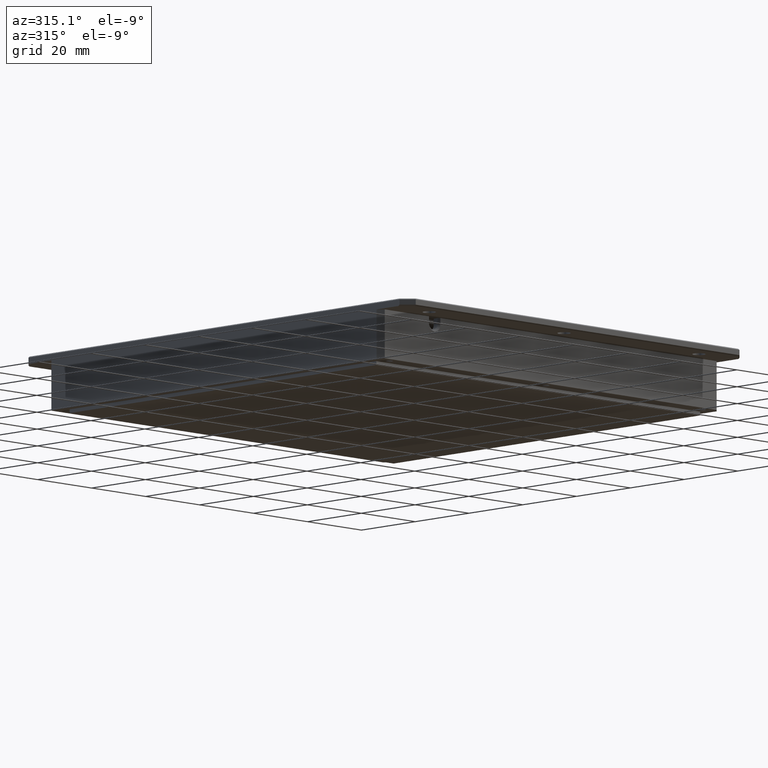
[diagram: clean part render]
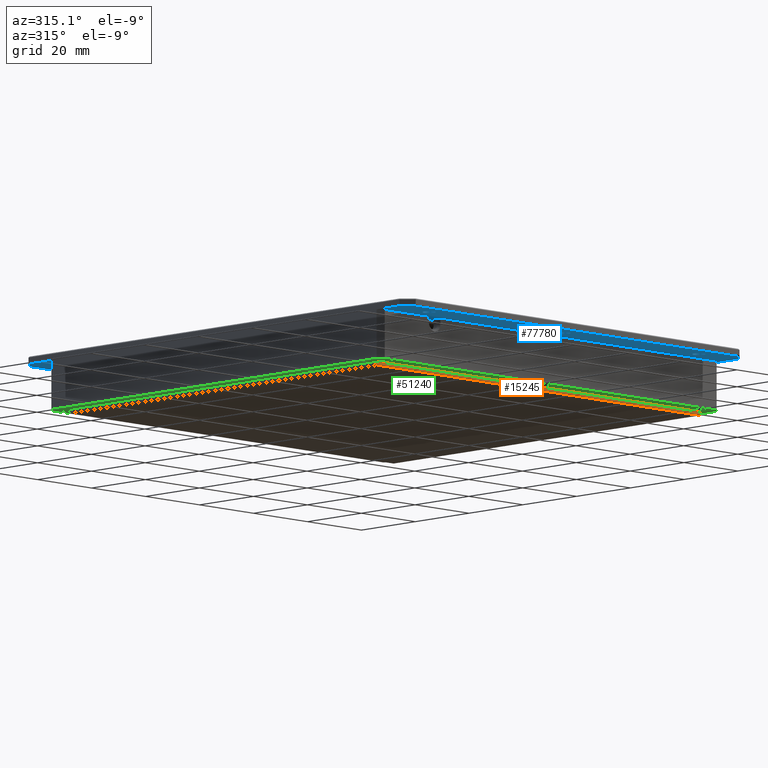
[diagram: same view with three faces highlighted in distinct colors, each labeled with its STEP entity id]
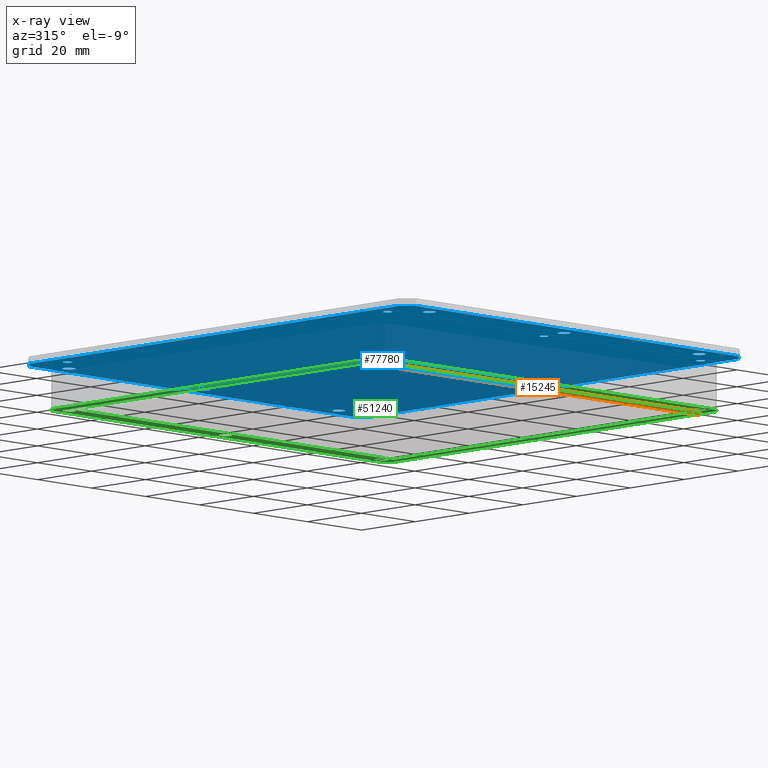
[diagram: x-ray of the same camera — body ghosted, the three highlighted faces saturated]
A machine part, auxiliary view with three faces highlighted in distinct colors.
The next image is the same camera in x-ray (body ghosted, the three faces saturated) — at least one of them is partly hidden behind the body in this view.
Their STEP definitions:

[orange] entity #15245 — the highlighted planar face has unit normal (0, 1, 0).
#1141 = ORIENTED_EDGE ( 'NONE', *, *, #70157, .F. ) ;
#2889 = VECTOR ( 'NONE', #27971, 1000.000000000000000 ) ;
#5995 = LINE ( 'NONE', #15081, #78928 ) ;
#6916 = CARTESIAN_POINT ( 'NONE',  ( 60.00000000000002100, -46.11034746086290400, -3.000000000016370500 ) ) ;
#9542 = EDGE_CURVE ( 'NONE', #23405, #45340, #44798, .T. ) ;
#9811 = CARTESIAN_POINT ( 'NONE',  ( -59.99999999999997200, -46.11034746086290400, -3.000000000016370500 ) ) ;
#10402 = VERTEX_POINT ( 'NONE', #66588 ) ;
#11748 = CARTESIAN_POINT ( 'NONE',  ( 60.00000000000002100, -46.11034746086290400, -3.000000000016370500 ) ) ;
#12347 = ORIENTED_EDGE ( 'NONE', *, *, #48751, .T. ) ;
#13976 = LINE ( 'NONE', #20909, #2889 ) ;
#14373 = ORIENTED_EDGE ( 'NONE', *, *, #83232, .F. ) ;
#14496 = ORIENTED_EDGE ( 'NONE', *, *, #9542, .T. ) ;
#15081 = CARTESIAN_POINT ( 'NONE',  ( 60.00000000000002100, -46.11034746086290400, -3.000000000016370500 ) ) ;
#15245 = ADVANCED_FACE ( 'NONE', ( #29198 ), #81844, .F. ) ;
#15818 = EDGE_LOOP ( 'NONE', ( #14496, #1141, #14373, #12347 ) ) ;
#18270 = VECTOR ( 'NONE', #73549, 1000.000000000000000 ) ;
#20870 = CARTESIAN_POINT ( 'NONE',  ( 60.00000000000002100, -46.11034746086289700, -2.000000000016370500 ) ) ;
#20909 = CARTESIAN_POINT ( 'NONE',  ( 60.00000000000002100, -46.11034746086290400, -3.000000000016370500 ) ) ;
#23405 = VERTEX_POINT ( 'NONE', #20870 ) ;
#25555 = LINE ( 'NONE', #9811, #58662 ) ;
#27971 = DIRECTION ( 'NONE',  ( -0.0000000000000000000, -0.0000000000000000000, 1.000000000000000000 ) ) ;
#29198 = FACE_OUTER_BOUND ( 'NONE', #15818, .T. ) ;
#30024 = CARTESIAN_POINT ( 'NONE',  ( 60.00000000000002100, -46.11034746086290400, -2.000000000016370500 ) ) ;
#40765 = DIRECTION ( 'NONE',  ( 0.0000000000000000000, 1.000000000000000000, 0.0000000000000000000 ) ) ;
#44798 = LINE ( 'NONE', #30024, #18270 ) ;
#45033 = DIRECTION ( 'NONE',  ( -0.0000000000000000000, -0.0000000000000000000, 1.000000000000000000 ) ) ;
#45115 = CARTESIAN_POINT ( 'NONE',  ( -59.99999999999997200, -46.11034746086290400, -2.000000000016370500 ) ) ;
#45340 = VERTEX_POINT ( 'NONE', #45115 ) ;
#47565 = VERTEX_POINT ( 'NONE', #6916 ) ;
#48751 = EDGE_CURVE ( 'NONE', #47565, #23405, #13976, .T. ) ;
#49058 = DIRECTION ( 'NONE',  ( -1.000000000000000000, 0.0000000000000000000, 0.0000000000000000000 ) ) ;
#58662 = VECTOR ( 'NONE', #45033, 1000.000000000000000 ) ;
#66588 = CARTESIAN_POINT ( 'NONE',  ( -59.99999999999997200, -46.11034746086290400, -3.000000000016370500 ) ) ;
#70157 = EDGE_CURVE ( 'NONE', #10402, #45340, #25555, .T. ) ;
#71131 = AXIS2_PLACEMENT_3D ( 'NONE', #11748, #40765, #90122 ) ;
#73549 = DIRECTION ( 'NONE',  ( -1.000000000000000000, 0.0000000000000000000, 0.0000000000000000000 ) ) ;
#78928 = VECTOR ( 'NONE', #49058, 1000.000000000000000 ) ;
#81844 = PLANE ( 'NONE',  #71131 ) ;
#83232 = EDGE_CURVE ( 'NONE', #47565, #10402, #5995, .T. ) ;
#90122 = DIRECTION ( 'NONE',  ( 0.0000000000000000000, -0.0000000000000000000, 1.000000000000000000 ) ) ;

[blue] entity #77780 — the highlighted planar face has unit normal (0, 0, -1).
#2 = VERTEX_POINT ( 'NONE', #35708 ) ;
#271 = AXIS2_PLACEMENT_3D ( 'NONE', #51923, #59913, #66147 ) ;
#340 = AXIS2_PLACEMENT_3D ( 'NONE', #18744, #25845, #32916 ) ;
#439 = CARTESIAN_POINT ( 'NONE',  ( -58.35509736540660700, 70.38965253913731600, 10.99999999998362900 ) ) ;
#542 = CIRCLE ( 'NONE', #60535, 1.199999999999992600 ) ;
#1120 = CIRCLE ( 'NONE', #57794, 1.750000000000001600 ) ;
#1303 = VECTOR ( 'NONE', #32647, 1000.000000000000000 ) ;
#1441 = AXIS2_PLACEMENT_3D ( 'NONE', #52213, #37735, #24088 ) ;
#1725 = VERTEX_POINT ( 'NONE', #90123 ) ;
#2164 = CIRCLE ( 'NONE', #33594, 1.749999999999994700 ) ;
#2220 = CARTESIAN_POINT ( 'NONE',  ( -50.35509736540662100, -56.11034746086280500, 10.99999999998362900 ) ) ;
#3586 = CARTESIAN_POINT ( 'NONE',  ( 58.84490263459335300, 70.38965253913708900, 10.99999999998362900 ) ) ;
#3815 = CARTESIAN_POINT ( 'NONE',  ( 62.64490263459336500, -57.68608339215082000, 10.99999999998362700 ) ) ;
#3973 = AXIS2_PLACEMENT_3D ( 'NONE', #24862, #17489, #88481 ) ;
#4500 = CARTESIAN_POINT ( 'NONE',  ( -0.3550973654066202900, 70.38965253913720200, 10.99999999998362900 ) ) ;
#4666 = CARTESIAN_POINT ( 'NONE',  ( 0.8449026345933724500, 70.38965253913720200, 10.99999999998362900 ) ) ;
#4929 = EDGE_LOOP ( 'NONE', ( #39326, #24091 ) ) ;
#5192 = CARTESIAN_POINT ( 'NONE',  ( -0.3550973654066480500, -48.61034746086278300, 10.99999999998362900 ) ) ;
#5398 = VERTEX_POINT ( 'NONE', #3815 ) ;
#5488 = VERTEX_POINT ( 'NONE', #41167 ) ;
#5751 = CIRCLE ( 'NONE', #67407, 1.750000000000001600 ) ;
#5807 = CIRCLE ( 'NONE', #19047, 1.199999999999992600 ) ;
#5818 = AXIS2_PLACEMENT_3D ( 'NONE', #70883, #36650, #78924 ) ;
#6398 = DIRECTION ( 'NONE',  ( 1.000000000000000000, 0.0000000000000000000, 0.0000000000000000000 ) ) ;
#6442 = ORIENTED_EDGE ( 'NONE', *, *, #86035, .T. ) ;
#6678 = EDGE_CURVE ( 'NONE', #89245, #10691, #36011, .T. ) ;
#6715 = EDGE_CURVE ( 'NONE', #60597, #41751, #20415, .T. ) ;
#7381 = VERTEX_POINT ( 'NONE', #71819 ) ;
#8109 = ORIENTED_EDGE ( 'NONE', *, *, #70982, .T. ) ;
#8296 = VECTOR ( 'NONE', #56103, 1000.000000000000000 ) ;
#8722 = ORIENTED_EDGE ( 'NONE', *, *, #6715, .T. ) ;
#8902 = VERTEX_POINT ( 'NONE', #28936 ) ;
#9186 = CARTESIAN_POINT ( 'NONE',  ( -2.105097365406622100, -56.11034746086279800, 10.99999999998362900 ) ) ;
#9501 = EDGE_LOOP ( 'NONE', ( #15522, #54613 ) ) ;
#9629 = CARTESIAN_POINT ( 'NONE',  ( -0.3550973654066480500, -48.61034746086278300, 10.99999999998362900 ) ) ;
#9937 = DIRECTION ( 'NONE',  ( 1.000000000000000000, 0.0000000000000000000, 0.0000000000000000000 ) ) ;
#10273 = DIRECTION ( 'NONE',  ( -0.7071067811865474600, -0.7071067811865474600, 0.0000000000000000000 ) ) ;
#10485 = EDGE_LOOP ( 'NONE', ( #36042, #56058 ) ) ;
#10691 = VERTEX_POINT ( 'NONE', #62805 ) ;
#10714 = CARTESIAN_POINT ( 'NONE',  ( -59.55509736540660300, -48.61034746086278300, 10.99999999998362900 ) ) ;
#11708 = ORIENTED_EDGE ( 'NONE', *, *, #72162, .T. ) ;
#11731 = VECTOR ( 'NONE', #10273, 1000.000000000000100 ) ;
#11946 = FACE_BOUND ( 'NONE', #10485, .T. ) ;
#12074 = EDGE_CURVE ( 'NONE', #64455, #42051, #29140, .T. ) ;
#13465 = AXIS2_PLACEMENT_3D ( 'NONE', #439, #55712, #34375 ) ;
#13487 = VERTEX_POINT ( 'NONE', #4666 ) ;
#13589 = CARTESIAN_POINT ( 'NONE',  ( 51.39490263459338600, -56.11034746086279100, 10.99999999998362900 ) ) ;
#14575 = CARTESIAN_POINT ( 'NONE',  ( 62.64490263459336500, 82.88965253913721700, 10.99999999998362900 ) ) ;
#14707 = CARTESIAN_POINT ( 'NONE',  ( 51.39490263459335800, 77.88965253913718800, 10.99999999998362900 ) ) ;
#14734 = EDGE_LOOP ( 'NONE', ( #34965, #86643 ) ) ;
#14946 = EDGE_CURVE ( 'NONE', #67254, #1725, #34859, .T. ) ;
#15045 = LINE ( 'NONE', #45816, #11731 ) ;
#15522 = ORIENTED_EDGE ( 'NONE', *, *, #12074, .T. ) ;
#15758 = EDGE_CURVE ( 'NONE', #7381, #40315, #88541, .T. ) ;
#16067 = EDGE_LOOP ( 'NONE', ( #44583, #27298 ) ) ;
#16168 = CARTESIAN_POINT ( 'NONE',  ( -57.15509736540661800, -48.61034746086278300, 10.99999999998362900 ) ) ;
#16271 = LINE ( 'NONE', #53203, #72604 ) ;
#16297 = EDGE_CURVE ( 'NONE', #13487, #2, #56520, .T. ) ;
#16516 = CARTESIAN_POINT ( 'NONE',  ( -57.15509736540661800, 70.38965253913731600, 10.99999999998362900 ) ) ;
#17043 = EDGE_CURVE ( 'NONE', #21971, #21071, #67437, .T. ) ;
#17098 = EDGE_CURVE ( 'NONE', #44300, #57053, #1120, .T. ) ;
#17186 = VECTOR ( 'NONE', #84320, 1000.000000000000000 ) ;
#17370 = ORIENTED_EDGE ( 'NONE', *, *, #19214, .T. ) ;
#17489 = DIRECTION ( 'NONE',  ( -0.0000000000000000000, -0.0000000000000000000, 1.000000000000000000 ) ) ;
#17819 = LINE ( 'NONE', #19098, #1303 ) ;
#17999 = CARTESIAN_POINT ( 'NONE',  ( 1.394902634593381300, -56.11034746086279800, 10.99999999998362900 ) ) ;
#18730 = AXIS2_PLACEMENT_3D ( 'NONE', #59819, #66657, #25552 ) ;
#18744 = CARTESIAN_POINT ( 'NONE',  ( -50.35509736540662100, 77.88965253913718800, 10.99999999998362900 ) ) ;
#19047 = AXIS2_PLACEMENT_3D ( 'NONE', #25407, #46423, #25099 ) ;
#19098 = CARTESIAN_POINT ( 'NONE',  ( -63.35509736540663500, 79.46538847042531000, 10.99999999998362900 ) ) ;
#19164 = DIRECTION ( 'NONE',  ( -0.0000000000000000000, -0.0000000000000000000, 1.000000000000000000 ) ) ;
#19214 = EDGE_CURVE ( 'NONE', #54623, #55666, #542, .T. ) ;
#19304 = DIRECTION ( 'NONE',  ( -0.0000000000000000000, -0.0000000000000000000, 1.000000000000000000 ) ) ;
#19352 = EDGE_CURVE ( 'NONE', #2, #13487, #65743, .T. ) ;
#19365 = CARTESIAN_POINT ( 'NONE',  ( -0.3550973654066202900, -56.11034746086279800, 10.99999999998362900 ) ) ;
#20086 = CARTESIAN_POINT ( 'NONE',  ( 57.64490263459336500, 70.38965253913708900, 10.99999999998362900 ) ) ;
#20415 = LINE ( 'NONE', #90352, #8296 ) ;
#20448 = CIRCLE ( 'NONE', #57041, 1.199999999999992600 ) ;
#20492 = VECTOR ( 'NONE', #69828, 1000.000000000000100 ) ;
#21071 = VERTEX_POINT ( 'NONE', #45291 ) ;
#21701 = EDGE_CURVE ( 'NONE', #21071, #21971, #75453, .T. ) ;
#21971 = VERTEX_POINT ( 'NONE', #16516 ) ;
#22913 = CARTESIAN_POINT ( 'NONE',  ( 57.64490263459336500, 70.38965253913708900, 10.99999999998362900 ) ) ;
#23449 = VERTEX_POINT ( 'NONE', #43399 ) ;
#23655 = ORIENTED_EDGE ( 'NONE', *, *, #82213, .T. ) ;
#23754 = LINE ( 'NONE', #39700, #50278 ) ;
#23803 = DIRECTION ( 'NONE',  ( -0.0000000000000000000, -0.0000000000000000000, 1.000000000000000000 ) ) ;
#24088 = DIRECTION ( 'NONE',  ( 1.000000000000000000, 0.0000000000000000000, 0.0000000000000000000 ) ) ;
#24091 = ORIENTED_EDGE ( 'NONE', *, *, #21701, .T. ) ;
#24862 = CARTESIAN_POINT ( 'NONE',  ( -58.35509736540660700, 70.38965253913731600, 10.99999999998362900 ) ) ;
#25003 = ORIENTED_EDGE ( 'NONE', *, *, #16297, .T. ) ;
#25099 = DIRECTION ( 'NONE',  ( 1.000000000000000000, 0.0000000000000000000, 0.0000000000000000000 ) ) ;
#25142 = CIRCLE ( 'NONE', #271, 1.750000000000001600 ) ;
#25407 = CARTESIAN_POINT ( 'NONE',  ( -58.35509736540660700, -48.61034746086278300, 10.99999999998362900 ) ) ;
#25552 = DIRECTION ( 'NONE',  ( 1.000000000000000000, 0.0000000000000000000, 0.0000000000000000000 ) ) ;
#25795 = DIRECTION ( 'NONE',  ( 0.0000000000000000000, 1.000000000000000000, 0.0000000000000000000 ) ) ;
#25845 = DIRECTION ( 'NONE',  ( -0.0000000000000000000, -0.0000000000000000000, 1.000000000000000000 ) ) ;
#26309 = DIRECTION ( 'NONE',  ( -0.0000000000000000000, -0.0000000000000000000, 1.000000000000000000 ) ) ;
#26429 = EDGE_LOOP ( 'NONE', ( #25003, #51580 ) ) ;
#26608 = DIRECTION ( 'NONE',  ( 1.000000000000000000, 0.0000000000000000000, 0.0000000000000000000 ) ) ;
#26658 = CARTESIAN_POINT ( 'NONE',  ( 49.64490263459335800, 77.88965253913718800, 10.99999999998362900 ) ) ;
#27298 = ORIENTED_EDGE ( 'NONE', *, *, #40571, .T. ) ;
#27302 = CARTESIAN_POINT ( 'NONE',  ( 49.64490263459335800, 77.88965253913718800, 10.99999999998362900 ) ) ;
#27397 = CARTESIAN_POINT ( 'NONE',  ( 57.64490263459336500, -48.61034746086282600, 10.99999999998362900 ) ) ;
#27583 = DIRECTION ( 'NONE',  ( 1.000000000000000000, 0.0000000000000000000, 0.0000000000000000000 ) ) ;
#27674 = DIRECTION ( 'NONE',  ( 1.000000000000000000, 0.0000000000000000000, 0.0000000000000000000 ) ) ;
#27888 = EDGE_CURVE ( 'NONE', #75079, #55200, #17819, .T. ) ;
#28268 = CARTESIAN_POINT ( 'NONE',  ( 0.8449026345933446900, -48.61034746086278300, 10.99999999998362900 ) ) ;
#28507 = FACE_BOUND ( 'NONE', #14734, .T. ) ;
#28936 = CARTESIAN_POINT ( 'NONE',  ( -52.10509736540662100, 77.88965253913718800, 10.99999999998362900 ) ) ;
#29140 = CIRCLE ( 'NONE', #5818, 1.750000000000001600 ) ;
#29327 = ORIENTED_EDGE ( 'NONE', *, *, #79867, .T. ) ;
#29886 = EDGE_CURVE ( 'NONE', #87800, #5488, #76757, .T. ) ;
#30426 = CARTESIAN_POINT ( 'NONE',  ( 47.89490263459335000, 77.88965253913718800, 10.99999999998362900 ) ) ;
#31063 = DIRECTION ( 'NONE',  ( 1.000000000000000000, 0.0000000000000000000, 0.0000000000000000000 ) ) ;
#31160 = VERTEX_POINT ( 'NONE', #54437 ) ;
#32394 = EDGE_LOOP ( 'NONE', ( #63367, #70420 ) ) ;
#32647 = DIRECTION ( 'NONE',  ( 0.7071067811865474600, 0.7071067811865475700, 0.0000000000000000000 ) ) ;
#32916 = DIRECTION ( 'NONE',  ( 1.000000000000000000, 0.0000000000000000000, 0.0000000000000000000 ) ) ;
#32961 = CARTESIAN_POINT ( 'NONE',  ( -48.60509736540662800, 77.88965253913718800, 10.99999999998362900 ) ) ;
#33201 = DIRECTION ( 'NONE',  ( 1.000000000000000000, 0.0000000000000000000, 0.0000000000000000000 ) ) ;
#33594 = AXIS2_PLACEMENT_3D ( 'NONE', #74184, #26309, #26608 ) ;
#33751 = LINE ( 'NONE', #70122, #20492 ) ;
#33848 = EDGE_CURVE ( 'NONE', #74961, #75079, #23754, .T. ) ;
#34228 = DIRECTION ( 'NONE',  ( 1.000000000000000000, -0.0000000000000000000, 0.0000000000000000000 ) ) ;
#34286 = DIRECTION ( 'NONE',  ( -1.000000000000000000, 0.0000000000000000000, -0.0000000000000000000 ) ) ;
#34298 = EDGE_LOOP ( 'NONE', ( #17370, #76006 ) ) ;
#34375 = DIRECTION ( 'NONE',  ( 1.000000000000000000, 0.0000000000000000000, 0.0000000000000000000 ) ) ;
#34699 = ORIENTED_EDGE ( 'NONE', *, *, #60260, .T. ) ;
#34708 = ORIENTED_EDGE ( 'NONE', *, *, #65560, .T. ) ;
#34859 = CIRCLE ( 'NONE', #69387, 1.199999999999992600 ) ;
#34965 = ORIENTED_EDGE ( 'NONE', *, *, #62825, .T. ) ;
#35533 = CARTESIAN_POINT ( 'NONE',  ( -63.35509736540663500, 79.46538847042533900, 10.99999999998363600 ) ) ;
#35708 = CARTESIAN_POINT ( 'NONE',  ( -1.555097365406612900, 70.38965253913720200, 10.99999999998362900 ) ) ;
#36011 = CIRCLE ( 'NONE', #54795, 1.750000000000001600 ) ;
#36042 = ORIENTED_EDGE ( 'NONE', *, *, #14946, .T. ) ;
#36633 = EDGE_CURVE ( 'NONE', #66794, #23449, #64714, .T. ) ;
#36650 = DIRECTION ( 'NONE',  ( -0.0000000000000000000, -0.0000000000000000000, 1.000000000000000000 ) ) ;
#36851 = DIRECTION ( 'NONE',  ( 1.000000000000000000, 0.0000000000000000000, 0.0000000000000000000 ) ) ;
#37326 = EDGE_CURVE ( 'NONE', #8902, #90298, #51171, .T. ) ;
#37424 = FACE_BOUND ( 'NONE', #32394, .T. ) ;
#37454 = DIRECTION ( 'NONE',  ( -0.0000000000000000000, -0.0000000000000000000, 1.000000000000000000 ) ) ;
#37474 = EDGE_LOOP ( 'NONE', ( #8109, #23655, #34699, #29327, #8722, #83186, #42608, #49895 ) ) ;
#37735 = DIRECTION ( 'NONE',  ( -0.0000000000000000000, -0.0000000000000000000, 1.000000000000000000 ) ) ;
#39017 = LINE ( 'NONE', #71439, #76583 ) ;
#39326 = ORIENTED_EDGE ( 'NONE', *, *, #17043, .T. ) ;
#39700 = CARTESIAN_POINT ( 'NONE',  ( -63.35509736540663500, 82.88965253913721700, 10.99999999998362900 ) ) ;
#40315 = VERTEX_POINT ( 'NONE', #28268 ) ;
#40493 = EDGE_LOOP ( 'NONE', ( #6442, #48014 ) ) ;
#40571 = EDGE_CURVE ( 'NONE', #31160, #46335, #73186, .T. ) ;
#40710 = DIRECTION ( 'NONE',  ( -0.0000000000000000000, -0.0000000000000000000, 1.000000000000000000 ) ) ;
#40794 = PLANE ( 'NONE',  #84349 ) ;
#41167 = CARTESIAN_POINT ( 'NONE',  ( -48.60509736540662800, -56.11034746086280500, 10.99999999998362900 ) ) ;
#41625 = AXIS2_PLACEMENT_3D ( 'NONE', #4500, #48062, #33201 ) ;
#41751 = VERTEX_POINT ( 'NONE', #61725 ) ;
#42051 = VERTEX_POINT ( 'NONE', #9186 ) ;
#42423 = DIRECTION ( 'NONE',  ( -0.0000000000000000000, -0.0000000000000000000, 1.000000000000000000 ) ) ;
#42608 = ORIENTED_EDGE ( 'NONE', *, *, #33848, .T. ) ;
#42880 = FACE_BOUND ( 'NONE', #40493, .T. ) ;
#43309 = CARTESIAN_POINT ( 'NONE',  ( -0.3550973654066202900, 77.88965253913718800, 10.99999999998362900 ) ) ;
#43399 = CARTESIAN_POINT ( 'NONE',  ( 1.394902634593381300, 77.88965253913718800, 10.99999999998362900 ) ) ;
#44300 = VERTEX_POINT ( 'NONE', #30426 ) ;
#44583 = ORIENTED_EDGE ( 'NONE', *, *, #87898, .T. ) ;
#45291 = CARTESIAN_POINT ( 'NONE',  ( -59.55509736540660300, 70.38965253913731600, 10.99999999998362900 ) ) ;
#45816 = CARTESIAN_POINT ( 'NONE',  ( 62.64490263459336500, -57.68608339215083400, 10.99999999998362900 ) ) ;
#46031 = EDGE_LOOP ( 'NONE', ( #34708, #69743 ) ) ;
#46335 = VERTEX_POINT ( 'NONE', #63299 ) ;
#46423 = DIRECTION ( 'NONE',  ( -0.0000000000000000000, -0.0000000000000000000, 1.000000000000000000 ) ) ;
#47075 = LINE ( 'NONE', #14575, #17186 ) ;
#47775 = CIRCLE ( 'NONE', #65463, 1.750000000000001600 ) ;
#48014 = ORIENTED_EDGE ( 'NONE', *, *, #36633, .T. ) ;
#48062 = DIRECTION ( 'NONE',  ( -0.0000000000000000000, -0.0000000000000000000, 1.000000000000000000 ) ) ;
#48514 = EDGE_LOOP ( 'NONE', ( #54065, #67259 ) ) ;
#49895 = ORIENTED_EDGE ( 'NONE', *, *, #27888, .T. ) ;
#50278 = VECTOR ( 'NONE', #25795, 1000.000000000000000 ) ;
#50718 = DIRECTION ( 'NONE',  ( 1.000000000000000000, 0.0000000000000000000, 0.0000000000000000000 ) ) ;
#51167 = CIRCLE ( 'NONE', #1441, 1.750000000000001600 ) ;
#51171 = CIRCLE ( 'NONE', #57616, 1.749999999999994700 ) ;
#51454 = EDGE_CURVE ( 'NONE', #55666, #54623, #5807, .T. ) ;
#51580 = ORIENTED_EDGE ( 'NONE', *, *, #19352, .T. ) ;
#51923 = CARTESIAN_POINT ( 'NONE',  ( -0.3550973654066202900, 77.88965253913718800, 10.99999999998362900 ) ) ;
#52213 = CARTESIAN_POINT ( 'NONE',  ( 49.64490263459338600, -56.11034746086279100, 10.99999999998362900 ) ) ;
#52711 = DIRECTION ( 'NONE',  ( -0.0000000000000000000, -0.0000000000000000000, 1.000000000000000000 ) ) ;
#52714 = CARTESIAN_POINT ( 'NONE',  ( -50.35509736540662100, 77.88965253913718800, 10.99999999998362900 ) ) ;
#52799 = FACE_BOUND ( 'NONE', #9501, .T. ) ;
#53107 = CARTESIAN_POINT ( 'NONE',  ( -60.23083329669471900, 82.58965253913721900, 10.99999999998362400 ) ) ;
#53203 = CARTESIAN_POINT ( 'NONE',  ( 59.52063856588148400, 82.58965253913721900, 10.99999999998362900 ) ) ;
#53329 = EDGE_CURVE ( 'NONE', #41751, #74961, #33751, .T. ) ;
#53945 = FACE_OUTER_BOUND ( 'NONE', #37474, .T. ) ;
#54065 = ORIENTED_EDGE ( 'NONE', *, *, #61989, .T. ) ;
#54437 = CARTESIAN_POINT ( 'NONE',  ( 56.44490263459336900, -48.61034746086282600, 10.99999999998362900 ) ) ;
#54613 = ORIENTED_EDGE ( 'NONE', *, *, #58491, .T. ) ;
#54623 = VERTEX_POINT ( 'NONE', #16168 ) ;
#54795 = AXIS2_PLACEMENT_3D ( 'NONE', #83581, #76214, #27674 ) ;
#55200 = VERTEX_POINT ( 'NONE', #53107 ) ;
#55666 = VERTEX_POINT ( 'NONE', #10714 ) ;
#55712 = DIRECTION ( 'NONE',  ( -0.0000000000000000000, -0.0000000000000000000, 1.000000000000000000 ) ) ;
#56058 = ORIENTED_EDGE ( 'NONE', *, *, #57939, .T. ) ;
#56103 = DIRECTION ( 'NONE',  ( -1.000000000000000000, 0.0000000000000000000, -0.0000000000000000000 ) ) ;
#56520 = CIRCLE ( 'NONE', #18730, 1.199999999999992600 ) ;
#57041 = AXIS2_PLACEMENT_3D ( 'NONE', #20086, #19164, #76592 ) ;
#57053 = VERTEX_POINT ( 'NONE', #14707 ) ;
#57616 = AXIS2_PLACEMENT_3D ( 'NONE', #52714, #74007, #31063 ) ;
#57794 = AXIS2_PLACEMENT_3D ( 'NONE', #27302, #42423, #27583 ) ;
#57939 = EDGE_CURVE ( 'NONE', #1725, #67254, #20448, .T. ) ;
#58491 = EDGE_CURVE ( 'NONE', #42051, #64455, #47775, .T. ) ;
#59819 = CARTESIAN_POINT ( 'NONE',  ( -0.3550973654066202900, 70.38965253913720200, 10.99999999998362900 ) ) ;
#59913 = DIRECTION ( 'NONE',  ( -0.0000000000000000000, -0.0000000000000000000, 1.000000000000000000 ) ) ;
#60235 = CIRCLE ( 'NONE', #67861, 1.199999999999992600 ) ;
#60260 = EDGE_CURVE ( 'NONE', #83850, #5398, #47075, .T. ) ;
#60535 = AXIS2_PLACEMENT_3D ( 'NONE', #87886, #52711, #67220 ) ;
#60597 = VERTEX_POINT ( 'NONE', #79968 ) ;
#61448 = AXIS2_PLACEMENT_3D ( 'NONE', #5192, #40710, #68499 ) ;
#61725 = CARTESIAN_POINT ( 'NONE',  ( -60.23083329669470500, -60.81034746086280100, 10.99999999998362900 ) ) ;
#61989 = EDGE_CURVE ( 'NONE', #5488, #87800, #2164, .T. ) ;
#62643 = CARTESIAN_POINT ( 'NONE',  ( -2.105097365406622100, 77.88965253913718800, 10.99999999998362900 ) ) ;
#62794 = AXIS2_PLACEMENT_3D ( 'NONE', #83512, #19304, #89657 ) ;
#62805 = CARTESIAN_POINT ( 'NONE',  ( 47.89490263459337900, -56.11034746086279100, 10.99999999998362900 ) ) ;
#62825 = EDGE_CURVE ( 'NONE', #57053, #44300, #5751, .T. ) ;
#63299 = CARTESIAN_POINT ( 'NONE',  ( 58.84490263459335300, -48.61034746086282600, 10.99999999998362900 ) ) ;
#63367 = ORIENTED_EDGE ( 'NONE', *, *, #6678, .T. ) ;
#63888 = FACE_BOUND ( 'NONE', #16067, .T. ) ;
#64455 = VERTEX_POINT ( 'NONE', #17999 ) ;
#64714 = CIRCLE ( 'NONE', #88310, 1.750000000000001600 ) ;
#65463 = AXIS2_PLACEMENT_3D ( 'NONE', #19365, #68766, #69652 ) ;
#65560 = EDGE_CURVE ( 'NONE', #90298, #8902, #90941, .T. ) ;
#65743 = CIRCLE ( 'NONE', #41625, 1.199999999999992600 ) ;
#65955 = AXIS2_PLACEMENT_3D ( 'NONE', #2220, #37454, #87087 ) ;
#66111 = FACE_BOUND ( 'NONE', #34298, .T. ) ;
#66147 = DIRECTION ( 'NONE',  ( 1.000000000000000000, 0.0000000000000000000, 0.0000000000000000000 ) ) ;
#66256 = CIRCLE ( 'NONE', #61448, 1.199999999999992600 ) ;
#66657 = DIRECTION ( 'NONE',  ( -0.0000000000000000000, -0.0000000000000000000, 1.000000000000000000 ) ) ;
#66794 = VERTEX_POINT ( 'NONE', #62643 ) ;
#67220 = DIRECTION ( 'NONE',  ( 1.000000000000000000, 0.0000000000000000000, 0.0000000000000000000 ) ) ;
#67254 = VERTEX_POINT ( 'NONE', #3586 ) ;
#67259 = ORIENTED_EDGE ( 'NONE', *, *, #29886, .T. ) ;
#67407 = AXIS2_PLACEMENT_3D ( 'NONE', #26658, #76382, #82842 ) ;
#67437 = CIRCLE ( 'NONE', #13465, 1.199999999999992600 ) ;
#67861 = AXIS2_PLACEMENT_3D ( 'NONE', #27397, #77126, #6398 ) ;
#68499 = DIRECTION ( 'NONE',  ( 1.000000000000000000, 0.0000000000000000000, 0.0000000000000000000 ) ) ;
#68766 = DIRECTION ( 'NONE',  ( -0.0000000000000000000, -0.0000000000000000000, 1.000000000000000000 ) ) ;
#69387 = AXIS2_PLACEMENT_3D ( 'NONE', #22913, #72025, #36851 ) ;
#69450 = EDGE_CURVE ( 'NONE', #10691, #89245, #51167, .T. ) ;
#69484 = VERTEX_POINT ( 'NONE', #72890 ) ;
#69652 = DIRECTION ( 'NONE',  ( 1.000000000000000000, 0.0000000000000000000, 0.0000000000000000000 ) ) ;
#69743 = ORIENTED_EDGE ( 'NONE', *, *, #37326, .T. ) ;
#69828 = DIRECTION ( 'NONE',  ( -0.7071067811865499000, 0.7071067811865452400, 0.0000000000000000000 ) ) ;
#70081 = CARTESIAN_POINT ( 'NONE',  ( -63.35509736540663500, 82.88965253913721700, 10.99999999998362900 ) ) ;
#70122 = CARTESIAN_POINT ( 'NONE',  ( -60.23083329669469800, -60.81034746086280100, 10.99999999998362900 ) ) ;
#70420 = ORIENTED_EDGE ( 'NONE', *, *, #69450, .T. ) ;
#70497 = FACE_BOUND ( 'NONE', #4929, .T. ) ;
#70883 = CARTESIAN_POINT ( 'NONE',  ( -0.3550973654066202900, -56.11034746086279800, 10.99999999998362900 ) ) ;
#70982 = EDGE_CURVE ( 'NONE', #55200, #69484, #39017, .T. ) ;
#71439 = CARTESIAN_POINT ( 'NONE',  ( -63.35509736540663500, 82.58965253913721900, 10.99999999998362900 ) ) ;
#71819 = CARTESIAN_POINT ( 'NONE',  ( -1.555097365406640900, -48.61034746086278300, 10.99999999998362900 ) ) ;
#71999 = DIRECTION ( 'NONE',  ( -0.0000000000000000000, -0.0000000000000000000, 1.000000000000000000 ) ) ;
#72025 = DIRECTION ( 'NONE',  ( -0.0000000000000000000, -0.0000000000000000000, 1.000000000000000000 ) ) ;
#72162 = EDGE_CURVE ( 'NONE', #40315, #7381, #66256, .T. ) ;
#72604 = VECTOR ( 'NONE', #88385, 1000.000000000000100 ) ;
#72890 = CARTESIAN_POINT ( 'NONE',  ( 59.52063856588151200, 82.58965253913724800, 10.99999999998362000 ) ) ;
#73186 = CIRCLE ( 'NONE', #62794, 1.199999999999992600 ) ;
#74007 = DIRECTION ( 'NONE',  ( -0.0000000000000000000, -0.0000000000000000000, 1.000000000000000000 ) ) ;
#74184 = CARTESIAN_POINT ( 'NONE',  ( -50.35509736540662100, -56.11034746086280500, 10.99999999998362900 ) ) ;
#74961 = VERTEX_POINT ( 'NONE', #84005 ) ;
#74966 = FACE_BOUND ( 'NONE', #26429, .T. ) ;
#75079 = VERTEX_POINT ( 'NONE', #35533 ) ;
#75453 = CIRCLE ( 'NONE', #3973, 1.199999999999992600 ) ;
#76006 = ORIENTED_EDGE ( 'NONE', *, *, #51454, .T. ) ;
#76214 = DIRECTION ( 'NONE',  ( -0.0000000000000000000, -0.0000000000000000000, 1.000000000000000000 ) ) ;
#76382 = DIRECTION ( 'NONE',  ( -0.0000000000000000000, -0.0000000000000000000, 1.000000000000000000 ) ) ;
#76583 = VECTOR ( 'NONE', #34228, 1000.000000000000000 ) ;
#76592 = DIRECTION ( 'NONE',  ( 1.000000000000000000, 0.0000000000000000000, 0.0000000000000000000 ) ) ;
#76621 = DIRECTION ( 'NONE',  ( 0.0000000000000000000, 0.0000000000000000000, -1.000000000000000000 ) ) ;
#76757 = CIRCLE ( 'NONE', #65955, 1.749999999999994700 ) ;
#77126 = DIRECTION ( 'NONE',  ( -0.0000000000000000000, -0.0000000000000000000, 1.000000000000000000 ) ) ;
#77780 = ADVANCED_FACE ( 'NONE', ( #53945, #63888, #89258, #66111, #11946, #74966, #70497, #42880, #52799, #79388, #37424, #28507, #78243 ), #40794, .T. ) ;
#78243 = FACE_BOUND ( 'NONE', #46031, .T. ) ;
#78924 = DIRECTION ( 'NONE',  ( 1.000000000000000000, 0.0000000000000000000, 0.0000000000000000000 ) ) ;
#79388 = FACE_BOUND ( 'NONE', #48514, .T. ) ;
#79867 = EDGE_CURVE ( 'NONE', #5398, #60597, #15045, .T. ) ;
#79968 = CARTESIAN_POINT ( 'NONE',  ( 59.52063856588142700, -60.81034746086280100, 10.99999999998362900 ) ) ;
#80318 = ORIENTED_EDGE ( 'NONE', *, *, #15758, .T. ) ;
#81336 = AXIS2_PLACEMENT_3D ( 'NONE', #9629, #23803, #9937 ) ;
#82067 = CARTESIAN_POINT ( 'NONE',  ( -52.10509736540662100, -56.11034746086280500, 10.99999999998362900 ) ) ;
#82213 = EDGE_CURVE ( 'NONE', #69484, #83850, #16271, .T. ) ;
#82842 = DIRECTION ( 'NONE',  ( 1.000000000000000000, 0.0000000000000000000, 0.0000000000000000000 ) ) ;
#83186 = ORIENTED_EDGE ( 'NONE', *, *, #53329, .T. ) ;
#83512 = CARTESIAN_POINT ( 'NONE',  ( 57.64490263459336500, -48.61034746086282600, 10.99999999998362900 ) ) ;
#83581 = CARTESIAN_POINT ( 'NONE',  ( 49.64490263459338600, -56.11034746086279100, 10.99999999998362900 ) ) ;
#83719 = EDGE_LOOP ( 'NONE', ( #11708, #80318 ) ) ;
#83850 = VERTEX_POINT ( 'NONE', #85628 ) ;
#84005 = CARTESIAN_POINT ( 'NONE',  ( -63.35509736540663500, -57.68608339215089800, 10.99999999998363800 ) ) ;
#84320 = DIRECTION ( 'NONE',  ( -0.0000000000000000000, -1.000000000000000000, -0.0000000000000000000 ) ) ;
#84349 = AXIS2_PLACEMENT_3D ( 'NONE', #70081, #76621, #34286 ) ;
#85628 = CARTESIAN_POINT ( 'NONE',  ( 62.64490263459336500, 79.46538847042533900, 10.99999999998362900 ) ) ;
#86035 = EDGE_CURVE ( 'NONE', #23449, #66794, #25142, .T. ) ;
#86643 = ORIENTED_EDGE ( 'NONE', *, *, #17098, .T. ) ;
#87087 = DIRECTION ( 'NONE',  ( 1.000000000000000000, 0.0000000000000000000, 0.0000000000000000000 ) ) ;
#87800 = VERTEX_POINT ( 'NONE', #82067 ) ;
#87886 = CARTESIAN_POINT ( 'NONE',  ( -58.35509736540660700, -48.61034746086278300, 10.99999999998362900 ) ) ;
#87898 = EDGE_CURVE ( 'NONE', #46335, #31160, #60235, .T. ) ;
#88310 = AXIS2_PLACEMENT_3D ( 'NONE', #43309, #71999, #50718 ) ;
#88385 = DIRECTION ( 'NONE',  ( 0.7071067811865474600, -0.7071067811865474600, 0.0000000000000000000 ) ) ;
#88481 = DIRECTION ( 'NONE',  ( 1.000000000000000000, 0.0000000000000000000, 0.0000000000000000000 ) ) ;
#88541 = CIRCLE ( 'NONE', #81336, 1.199999999999992600 ) ;
#89245 = VERTEX_POINT ( 'NONE', #13589 ) ;
#89258 = FACE_BOUND ( 'NONE', #83719, .T. ) ;
#89657 = DIRECTION ( 'NONE',  ( 1.000000000000000000, 0.0000000000000000000, 0.0000000000000000000 ) ) ;
#90123 = CARTESIAN_POINT ( 'NONE',  ( 56.44490263459336900, 70.38965253913708900, 10.99999999998362900 ) ) ;
#90298 = VERTEX_POINT ( 'NONE', #32961 ) ;
#90352 = CARTESIAN_POINT ( 'NONE',  ( -63.35509736540663500, -60.81034746086280100, 10.99999999998362900 ) ) ;
#90941 = CIRCLE ( 'NONE', #340, 1.749999999999994700 ) ;

[green] entity #51240 — the highlighted planar face has unit normal (0, 0, 1).
#1113 = DIRECTION ( 'NONE',  ( -0.0000000000000000000, -0.0000000000000000000, 1.000000000000000000 ) ) ;
#1707 = EDGE_CURVE ( 'NONE', #19889, #68855, #11750, .T. ) ;
#2984 = FACE_BOUND ( 'NONE', #15708, .T. ) ;
#3022 = CARTESIAN_POINT ( 'NONE',  ( -59.99999999999995700, 67.88965253913708900, -2.000000000016370500 ) ) ;
#3204 = CARTESIAN_POINT ( 'NONE',  ( 61.14490263459339300, 72.88965253913708900, -2.000000000016370500 ) ) ;
#3499 = DIRECTION ( 'NONE',  ( -1.000000000000000000, 0.0000000000000000000, 0.0000000000000000000 ) ) ;
#4015 = VERTEX_POINT ( 'NONE', #37887 ) ;
#4743 = CARTESIAN_POINT ( 'NONE',  ( -63.35509736540663500, 71.38965253913708900, -2.000000000016370500 ) ) ;
#5944 = CARTESIAN_POINT ( 'NONE',  ( -0.3550973654066619200, -48.11034746086286900, -2.000000000025920200 ) ) ;
#6634 = DIRECTION ( 'NONE',  ( -1.000000000000000000, 0.0000000000000000000, 0.0000000000000000000 ) ) ;
#7027 = AXIS2_PLACEMENT_3D ( 'NONE', #45169, #52259, #46093 ) ;
#7548 = ORIENTED_EDGE ( 'NONE', *, *, #16315, .T. ) ;
#7754 = VECTOR ( 'NONE', #8674, 1000.000000000000000 ) ;
#7805 = VECTOR ( 'NONE', #37449, 1000.000000000000000 ) ;
#7963 = EDGE_LOOP ( 'NONE', ( #84506, #83634 ) ) ;
#8674 = DIRECTION ( 'NONE',  ( -1.000000000000000000, 2.220446049250313100E-016, 0.0000000000000000000 ) ) ;
#8874 = EDGE_CURVE ( 'NONE', #26863, #64374, #70323, .T. ) ;
#9048 = VECTOR ( 'NONE', #72811, 1000.000000000000000 ) ;
#9374 = ORIENTED_EDGE ( 'NONE', *, *, #72003, .T. ) ;
#9542 = EDGE_CURVE ( 'NONE', #23405, #45340, #44798, .T. ) ;
#9622 = ORIENTED_EDGE ( 'NONE', *, *, #59809, .F. ) ;
#9945 = ORIENTED_EDGE ( 'NONE', *, *, #50439, .T. ) ;
#11114 = CARTESIAN_POINT ( 'NONE',  ( 59.44490263459170600, -48.11034746086288300, -2.000000000025920200 ) ) ;
#11119 = VECTOR ( 'NONE', #91545, 1000.000000000000000 ) ;
#11134 = AXIS2_PLACEMENT_3D ( 'NONE', #39835, #53101, #65467 ) ;
#11351 = CARTESIAN_POINT ( 'NONE',  ( -58.35509736540665700, -48.11034746086285500, -1.999999999969077000 ) ) ;
#11750 = CIRCLE ( 'NONE', #19372, 1.799999999991086500 ) ;
#11961 = CARTESIAN_POINT ( 'NONE',  ( -56.55509736542281700, 69.88965253913714500, -1.999999999969077000 ) ) ;
#12669 = ORIENTED_EDGE ( 'NONE', *, *, #80371, .F. ) ;
#13270 = DIRECTION ( 'NONE',  ( 1.000000000000000000, -1.156482317317871500E-016, 0.0000000000000000000 ) ) ;
#14173 = CARTESIAN_POINT ( 'NONE',  ( -2.155097365397720600, 69.88965253913711700, -2.000000000025920200 ) ) ;
#14409 = VERTEX_POINT ( 'NONE', #15335 ) ;
#14913 = ORIENTED_EDGE ( 'NONE', *, *, #24770, .F. ) ;
#14937 = AXIS2_PLACEMENT_3D ( 'NONE', #45221, #43049, #3499 ) ;
#15335 = CARTESIAN_POINT ( 'NONE',  ( 62.64490263459336500, 71.38965253913708900, -2.000000000016370500 ) ) ;
#15708 = EDGE_LOOP ( 'NONE', ( #89799, #67812 ) ) ;
#16315 = EDGE_CURVE ( 'NONE', #64374, #14409, #37767, .T. ) ;
#16674 = LINE ( 'NONE', #64923, #7805 ) ;
#18270 = VECTOR ( 'NONE', #73549, 1000.000000000000000 ) ;
#18465 = ORIENTED_EDGE ( 'NONE', *, *, #49853, .T. ) ;
#18743 = EDGE_LOOP ( 'NONE', ( #21689, #12669 ) ) ;
#19372 = AXIS2_PLACEMENT_3D ( 'NONE', #5944, #55365, #69842 ) ;
#19756 = CARTESIAN_POINT ( 'NONE',  ( -59.99999999999996400, 67.88965253913708900, -2.000000000016370500 ) ) ;
#19889 = VERTEX_POINT ( 'NONE', #39315 ) ;
#20238 = AXIS2_PLACEMENT_3D ( 'NONE', #36618, #1113, #85347 ) ;
#20378 = DIRECTION ( 'NONE',  ( -1.000000000000000000, 0.0000000000000000000, 0.0000000000000000000 ) ) ;
#20854 = CARTESIAN_POINT ( 'NONE',  ( -61.85509736540662100, 72.88965253913711700, -2.000000000016370500 ) ) ;
#20870 = CARTESIAN_POINT ( 'NONE',  ( 60.00000000000002100, -46.11034746086289700, -2.000000000016370500 ) ) ;
#21689 = ORIENTED_EDGE ( 'NONE', *, *, #53614, .F. ) ;
#21764 = FACE_BOUND ( 'NONE', #55516, .T. ) ;
#21967 = CIRCLE ( 'NONE', #7027, 1.799999999983814500 ) ;
#22399 = VERTEX_POINT ( 'NONE', #64924 ) ;
#22814 = FACE_BOUND ( 'NONE', #7963, .T. ) ;
#23328 = CARTESIAN_POINT ( 'NONE',  ( -63.35509736540666400, -49.61034746086286900, -2.000000000016370500 ) ) ;
#23405 = VERTEX_POINT ( 'NONE', #20870 ) ;
#23466 = CARTESIAN_POINT ( 'NONE',  ( 62.64490263459333600, -51.11034746086289700, -2.000000000016370500 ) ) ;
#24770 = EDGE_CURVE ( 'NONE', #45340, #65404, #49890, .T. ) ;
#25509 = EDGE_CURVE ( 'NONE', #55607, #42092, #48495, .T. ) ;
#25872 = DIRECTION ( 'NONE',  ( 0.0000000000000000000, 0.0000000000000000000, 1.000000000000000000 ) ) ;
#26755 = AXIS2_PLACEMENT_3D ( 'NONE', #87040, #88885, #54032 ) ;
#26863 = VERTEX_POINT ( 'NONE', #20854 ) ;
#27820 = AXIS2_PLACEMENT_3D ( 'NONE', #53971, #25872, #40985 ) ;
#28667 = EDGE_CURVE ( 'NONE', #30045, #65366, #57442, .T. ) ;
#29331 = CARTESIAN_POINT ( 'NONE',  ( 1.444902634584452400, 69.88965253913711700, -2.000000000025920200 ) ) ;
#29698 = VECTOR ( 'NONE', #73361, 1000.000000000000000 ) ;
#29846 = CIRCLE ( 'NONE', #14937, 1.799999999991086500 ) ;
#29945 = CARTESIAN_POINT ( 'NONE',  ( -0.3550973654066341700, 69.88965253913711700, -2.000000000025920200 ) ) ;
#30024 = CARTESIAN_POINT ( 'NONE',  ( 60.00000000000002100, -46.11034746086290400, -2.000000000016370500 ) ) ;
#30045 = VERTEX_POINT ( 'NONE', #11114 ) ;
#30089 = EDGE_CURVE ( 'NONE', #65404, #22399, #47972, .T. ) ;
#31236 = DIRECTION ( 'NONE',  ( -1.217349807703022600E-016, -1.000000000000000000, 0.0000000000000000000 ) ) ;
#31658 = FACE_OUTER_BOUND ( 'NONE', #40405, .T. ) ;
#32622 = CARTESIAN_POINT ( 'NONE',  ( -60.15509736539044600, 69.88965253913714500, -1.999999999969077000 ) ) ;
#32626 = CARTESIAN_POINT ( 'NONE',  ( 59.44490263459173500, 69.88965253913711700, -2.000000000025920200 ) ) ;
#32884 = EDGE_CURVE ( 'NONE', #54114, #78071, #85937, .T. ) ;
#33639 = CARTESIAN_POINT ( 'NONE',  ( 57.64490263459334300, -48.11034746086288300, -2.000000000025920200 ) ) ;
#34410 = CARTESIAN_POINT ( 'NONE',  ( -58.35509736540665700, -48.11034746086285500, -1.999999999969077000 ) ) ;
#34861 = AXIS2_PLACEMENT_3D ( 'NONE', #51705, #37818, #58770 ) ;
#34878 = ORIENTED_EDGE ( 'NONE', *, *, #63079, .T. ) ;
#34939 = EDGE_CURVE ( 'NONE', #76815, #76191, #83964, .T. ) ;
#35752 = AXIS2_PLACEMENT_3D ( 'NONE', #33639, #69457, #20378 ) ;
#36618 = CARTESIAN_POINT ( 'NONE',  ( 57.64490263459334300, -48.11034746086288300, -2.000000000025920200 ) ) ;
#36628 = VECTOR ( 'NONE', #43849, 1000.000000000000000 ) ;
#37365 = CARTESIAN_POINT ( 'NONE',  ( 62.64490263459336500, 71.38965253913711700, -2.000000000016370500 ) ) ;
#37449 = DIRECTION ( 'NONE',  ( -2.220446049250313100E-016, -1.000000000000000000, -0.0000000000000000000 ) ) ;
#37703 = DIRECTION ( 'NONE',  ( 0.0000000000000000000, 0.0000000000000000000, -1.000000000000000000 ) ) ;
#37767 = LINE ( 'NONE', #37365, #9048 ) ;
#37818 = DIRECTION ( 'NONE',  ( 0.0000000000000000000, 0.0000000000000000000, -1.000000000000000000 ) ) ;
#37887 = CARTESIAN_POINT ( 'NONE',  ( 55.84490263459500200, 69.88965253913711700, -2.000000000025920200 ) ) ;
#38135 = VECTOR ( 'NONE', #38559, 1000.000000000000000 ) ;
#38554 = DIRECTION ( 'NONE',  ( -1.000000000000000000, 0.0000000000000000000, 0.0000000000000000000 ) ) ;
#38559 = DIRECTION ( 'NONE',  ( -0.7071067811865476800, -0.7071067811865474600, -0.0000000000000000000 ) ) ;
#38855 = DIRECTION ( 'NONE',  ( 0.0000000000000000000, 0.0000000000000000000, -1.000000000000000000 ) ) ;
#39315 = CARTESIAN_POINT ( 'NONE',  ( 1.444902634584424500, -48.11034746086286900, -2.000000000025920200 ) ) ;
#39410 = FACE_BOUND ( 'NONE', #79837, .T. ) ;
#39835 = CARTESIAN_POINT ( 'NONE',  ( -58.35509736540662800, 69.88965253913714500, -1.999999999969077000 ) ) ;
#40327 = ORIENTED_EDGE ( 'NONE', *, *, #32884, .F. ) ;
#40405 = EDGE_LOOP ( 'NONE', ( #54154, #9374, #87521, #18465, #80904, #71404, #7548, #34878 ) ) ;
#40905 = EDGE_CURVE ( 'NONE', #68855, #19889, #29846, .T. ) ;
#40985 = DIRECTION ( 'NONE',  ( 1.000000000000000000, -2.220446049250313100E-016, 0.0000000000000000000 ) ) ;
#41308 = CIRCLE ( 'NONE', #11134, 1.799999999983814500 ) ;
#41580 = ORIENTED_EDGE ( 'NONE', *, *, #65037, .T. ) ;
#41609 = CARTESIAN_POINT ( 'NONE',  ( -56.55509736542284600, -48.11034746086285500, -1.999999999969077000 ) ) ;
#41628 = FACE_BOUND ( 'NONE', #52617, .T. ) ;
#42092 = VERTEX_POINT ( 'NONE', #66002 ) ;
#42976 = VECTOR ( 'NONE', #31236, 1000.000000000000000 ) ;
#43049 = DIRECTION ( 'NONE',  ( 0.0000000000000000000, 0.0000000000000000000, -1.000000000000000000 ) ) ;
#43849 = DIRECTION ( 'NONE',  ( 1.217349807703022600E-016, 1.000000000000000000, 0.0000000000000000000 ) ) ;
#44050 = LINE ( 'NONE', #66487, #42976 ) ;
#44798 = LINE ( 'NONE', #30024, #18270 ) ;
#44991 = CARTESIAN_POINT ( 'NONE',  ( -63.35509736540666400, -51.11034746086286900, -2.000000000016370500 ) ) ;
#45115 = CARTESIAN_POINT ( 'NONE',  ( -59.99999999999997200, -46.11034746086290400, -2.000000000016370500 ) ) ;
#45123 = CIRCLE ( 'NONE', #34861, 1.799999999991086500 ) ;
#45169 = CARTESIAN_POINT ( 'NONE',  ( -58.35509736540662800, 69.88965253913714500, -1.999999999969077000 ) ) ;
#45221 = CARTESIAN_POINT ( 'NONE',  ( -0.3550973654066619200, -48.11034746086286900, -2.000000000025920200 ) ) ;
#45335 = LINE ( 'NONE', #23466, #7754 ) ;
#45340 = VERTEX_POINT ( 'NONE', #45115 ) ;
#46093 = DIRECTION ( 'NONE',  ( -1.000000000000000000, 0.0000000000000000000, 0.0000000000000000000 ) ) ;
#47972 = LINE ( 'NONE', #19756, #85480 ) ;
#48488 = VERTEX_POINT ( 'NONE', #32626 ) ;
#48489 = EDGE_CURVE ( 'NONE', #80192, #69037, #65786, .T. ) ;
#48495 = LINE ( 'NONE', #23328, #29698 ) ;
#48655 = CARTESIAN_POINT ( 'NONE',  ( -2.155097365397748500, -48.11034746086286900, -2.000000000025920200 ) ) ;
#49853 = EDGE_CURVE ( 'NONE', #42092, #77238, #80842, .T. ) ;
#49890 = LINE ( 'NONE', #86098, #36628 ) ;
#50439 = EDGE_CURVE ( 'NONE', #58460, #76507, #21967, .T. ) ;
#50474 = FACE_BOUND ( 'NONE', #69918, .T. ) ;
#50995 = EDGE_CURVE ( 'NONE', #76191, #76815, #67170, .T. ) ;
#51240 = ADVANCED_FACE ( 'NONE', ( #41628, #2984, #22814, #69237, #39410, #50474, #31658, #21764 ), #61968, .F. ) ;
#51604 = CARTESIAN_POINT ( 'NONE',  ( 57.64490263459337200, 69.88965253913711700, -2.000000000025920200 ) ) ;
#51705 = CARTESIAN_POINT ( 'NONE',  ( -0.3550973654066341700, 69.88965253913711700, -2.000000000025920200 ) ) ;
#52209 = DIRECTION ( 'NONE',  ( -1.000000000000000000, 0.0000000000000000000, 0.0000000000000000000 ) ) ;
#52226 = ORIENTED_EDGE ( 'NONE', *, *, #28667, .T. ) ;
#52259 = DIRECTION ( 'NONE',  ( -0.0000000000000000000, -0.0000000000000000000, 1.000000000000000000 ) ) ;
#52483 = DIRECTION ( 'NONE',  ( -1.000000000000000000, 0.0000000000000000000, 0.0000000000000000000 ) ) ;
#52617 = EDGE_LOOP ( 'NONE', ( #41580, #52226 ) ) ;
#52629 = ORIENTED_EDGE ( 'NONE', *, *, #30089, .F. ) ;
#53049 = CARTESIAN_POINT ( 'NONE',  ( 61.14490263459333600, -51.11034746086289700, -2.000000000016370500 ) ) ;
#53101 = DIRECTION ( 'NONE',  ( -0.0000000000000000000, -0.0000000000000000000, 1.000000000000000000 ) ) ;
#53614 = EDGE_CURVE ( 'NONE', #4015, #48488, #84504, .T. ) ;
#53971 = CARTESIAN_POINT ( 'NONE',  ( 62.64490263459336500, 72.88965253913708900, -2.000000000016370500 ) ) ;
#54032 = DIRECTION ( 'NONE',  ( -1.000000000000000000, 0.0000000000000000000, 0.0000000000000000000 ) ) ;
#54114 = VERTEX_POINT ( 'NONE', #14173 ) ;
#54154 = ORIENTED_EDGE ( 'NONE', *, *, #48489, .T. ) ;
#54404 = AXIS2_PLACEMENT_3D ( 'NONE', #34410, #62846, #6634 ) ;
#55052 = ORIENTED_EDGE ( 'NONE', *, *, #9542, .F. ) ;
#55365 = DIRECTION ( 'NONE',  ( 0.0000000000000000000, 0.0000000000000000000, -1.000000000000000000 ) ) ;
#55516 = EDGE_LOOP ( 'NONE', ( #14913, #55052, #76094, #52629 ) ) ;
#55607 = VERTEX_POINT ( 'NONE', #79877 ) ;
#57123 = CARTESIAN_POINT ( 'NONE',  ( 62.64490263459333600, -49.61034746086289700, -2.000000000016370500 ) ) ;
#57442 = CIRCLE ( 'NONE', #20238, 1.799999999998365400 ) ;
#58460 = VERTEX_POINT ( 'NONE', #11961 ) ;
#58770 = DIRECTION ( 'NONE',  ( -1.000000000000000000, 0.0000000000000000000, 0.0000000000000000000 ) ) ;
#59760 = DIRECTION ( 'NONE',  ( 2.220446049250313100E-016, 1.000000000000000000, 0.0000000000000000000 ) ) ;
#59809 = EDGE_CURVE ( 'NONE', #78071, #54114, #45123, .T. ) ;
#60011 = CARTESIAN_POINT ( 'NONE',  ( 61.14490263459332900, -51.11034746086289700, -2.000000000016370500 ) ) ;
#60027 = CIRCLE ( 'NONE', #26755, 1.799999999998365400 ) ;
#60432 = VECTOR ( 'NONE', #79248, 1000.000000000000000 ) ;
#61968 = PLANE ( 'NONE',  #27820 ) ;
#62402 = EDGE_CURVE ( 'NONE', #76507, #58460, #41308, .T. ) ;
#62846 = DIRECTION ( 'NONE',  ( 0.0000000000000000000, 0.0000000000000000000, -1.000000000000000000 ) ) ;
#63079 = EDGE_CURVE ( 'NONE', #14409, #80192, #16674, .T. ) ;
#64374 = VERTEX_POINT ( 'NONE', #3204 ) ;
#64923 = CARTESIAN_POINT ( 'NONE',  ( 62.64490263459333600, -51.11034746086289700, -2.000000000016370500 ) ) ;
#64924 = CARTESIAN_POINT ( 'NONE',  ( 60.00000000000003600, 67.88965253913707400, -2.000000000016370500 ) ) ;
#65037 = EDGE_CURVE ( 'NONE', #65366, #30045, #87764, .T. ) ;
#65366 = VERTEX_POINT ( 'NONE', #74023 ) ;
#65404 = VERTEX_POINT ( 'NONE', #3022 ) ;
#65467 = DIRECTION ( 'NONE',  ( -1.000000000000000000, 0.0000000000000000000, 0.0000000000000000000 ) ) ;
#65786 = LINE ( 'NONE', #53049, #38135 ) ;
#66002 = CARTESIAN_POINT ( 'NONE',  ( -63.35509736540666400, -49.61034746086287600, -2.000000000016370500 ) ) ;
#66487 = CARTESIAN_POINT ( 'NONE',  ( 60.00000000000002800, 10.88965253913709600, -2.000000000016370500 ) ) ;
#67170 = CIRCLE ( 'NONE', #72204, 1.799999999983814500 ) ;
#67812 = ORIENTED_EDGE ( 'NONE', *, *, #1707, .F. ) ;
#68855 = VERTEX_POINT ( 'NONE', #48655 ) ;
#69037 = VERTEX_POINT ( 'NONE', #60011 ) ;
#69237 = FACE_BOUND ( 'NONE', #18743, .T. ) ;
#69457 = DIRECTION ( 'NONE',  ( -0.0000000000000000000, -0.0000000000000000000, 1.000000000000000000 ) ) ;
#69842 = DIRECTION ( 'NONE',  ( -1.000000000000000000, 0.0000000000000000000, 0.0000000000000000000 ) ) ;
#69918 = EDGE_LOOP ( 'NONE', ( #82192, #9945 ) ) ;
#70323 = LINE ( 'NONE', #78359, #60432 ) ;
#70924 = LINE ( 'NONE', #91253, #11119 ) ;
#71404 = ORIENTED_EDGE ( 'NONE', *, *, #8874, .T. ) ;
#72003 = EDGE_CURVE ( 'NONE', #69037, #55607, #45335, .T. ) ;
#72204 = AXIS2_PLACEMENT_3D ( 'NONE', #11351, #38855, #38554 ) ;
#72811 = DIRECTION ( 'NONE',  ( 0.7071067811865474600, -0.7071067811865476800, -0.0000000000000000000 ) ) ;
#73361 = DIRECTION ( 'NONE',  ( -0.7071067811865474600, 0.7071067811865476800, 0.0000000000000000000 ) ) ;
#73549 = DIRECTION ( 'NONE',  ( -1.000000000000000000, 0.0000000000000000000, 0.0000000000000000000 ) ) ;
#74023 = CARTESIAN_POINT ( 'NONE',  ( 55.84490263459497300, -48.11034746086288300, -2.000000000025920200 ) ) ;
#76094 = ORIENTED_EDGE ( 'NONE', *, *, #77689, .F. ) ;
#76191 = VERTEX_POINT ( 'NONE', #82609 ) ;
#76507 = VERTEX_POINT ( 'NONE', #32622 ) ;
#76815 = VERTEX_POINT ( 'NONE', #41609 ) ;
#77238 = VERTEX_POINT ( 'NONE', #4743 ) ;
#77689 = EDGE_CURVE ( 'NONE', #22399, #23405, #44050, .T. ) ;
#78071 = VERTEX_POINT ( 'NONE', #29331 ) ;
#78359 = CARTESIAN_POINT ( 'NONE',  ( 62.64490263459336500, 72.88965253913708900, -2.000000000016370500 ) ) ;
#78488 = EDGE_CURVE ( 'NONE', #77238, #26863, #70924, .T. ) ;
#78673 = VECTOR ( 'NONE', #59760, 1000.000000000000000 ) ;
#79248 = DIRECTION ( 'NONE',  ( 1.000000000000000000, -2.220446049250313100E-016, -0.0000000000000000000 ) ) ;
#79837 = EDGE_LOOP ( 'NONE', ( #40327, #9622 ) ) ;
#79877 = CARTESIAN_POINT ( 'NONE',  ( -61.85509736540663500, -51.11034746086287600, -2.000000000016370500 ) ) ;
#80192 = VERTEX_POINT ( 'NONE', #57123 ) ;
#80371 = EDGE_CURVE ( 'NONE', #48488, #4015, #60027, .T. ) ;
#80583 = DIRECTION ( 'NONE',  ( 0.0000000000000000000, 0.0000000000000000000, -1.000000000000000000 ) ) ;
#80842 = LINE ( 'NONE', #44991, #78673 ) ;
#80904 = ORIENTED_EDGE ( 'NONE', *, *, #78488, .T. ) ;
#82002 = AXIS2_PLACEMENT_3D ( 'NONE', #29945, #37703, #52483 ) ;
#82192 = ORIENTED_EDGE ( 'NONE', *, *, #62402, .T. ) ;
#82609 = CARTESIAN_POINT ( 'NONE',  ( -60.15509736539047500, -48.11034746086285500, -1.999999999969077000 ) ) ;
#83634 = ORIENTED_EDGE ( 'NONE', *, *, #34939, .F. ) ;
#83964 = CIRCLE ( 'NONE', #54404, 1.799999999983814500 ) ;
#84504 = CIRCLE ( 'NONE', #89592, 1.799999999998365400 ) ;
#84506 = ORIENTED_EDGE ( 'NONE', *, *, #50995, .F. ) ;
#85347 = DIRECTION ( 'NONE',  ( -1.000000000000000000, 0.0000000000000000000, 0.0000000000000000000 ) ) ;
#85480 = VECTOR ( 'NONE', #13270, 1000.000000000000000 ) ;
#85937 = CIRCLE ( 'NONE', #82002, 1.799999999991086500 ) ;
#86098 = CARTESIAN_POINT ( 'NONE',  ( -59.99999999999997200, 10.88965253913709600, -2.000000000016370500 ) ) ;
#87040 = CARTESIAN_POINT ( 'NONE',  ( 57.64490263459337200, 69.88965253913711700, -2.000000000025920200 ) ) ;
#87521 = ORIENTED_EDGE ( 'NONE', *, *, #25509, .T. ) ;
#87764 = CIRCLE ( 'NONE', #35752, 1.799999999998365400 ) ;
#88885 = DIRECTION ( 'NONE',  ( 0.0000000000000000000, 0.0000000000000000000, -1.000000000000000000 ) ) ;
#89592 = AXIS2_PLACEMENT_3D ( 'NONE', #51604, #80583, #52209 ) ;
#89799 = ORIENTED_EDGE ( 'NONE', *, *, #40905, .F. ) ;
#91253 = CARTESIAN_POINT ( 'NONE',  ( -61.85509736540663500, 72.88965253913711700, -2.000000000016370500 ) ) ;
#91545 = DIRECTION ( 'NONE',  ( 0.7071067811865411300, 0.7071067811865539000, -0.0000000000000000000 ) ) ;